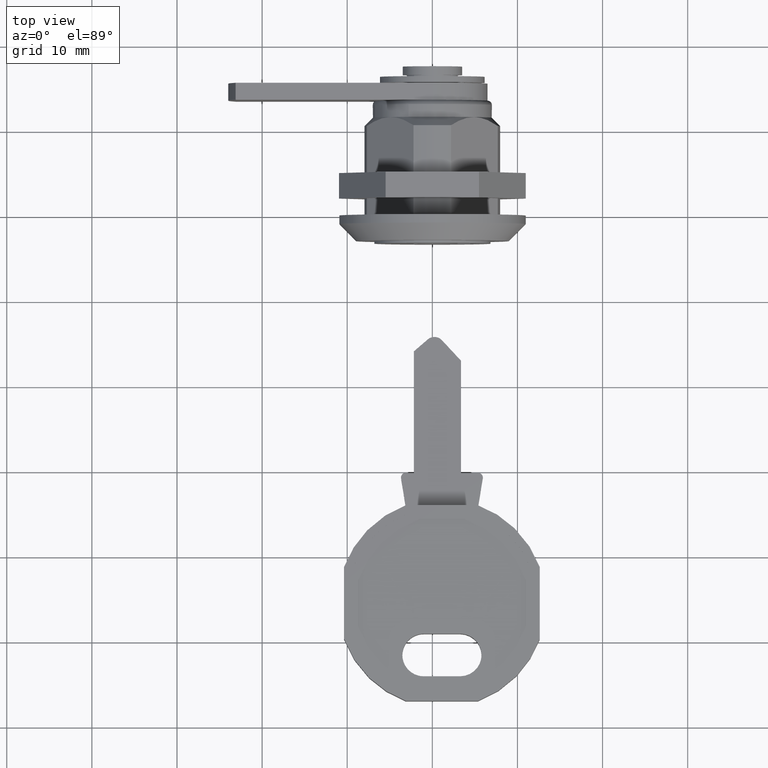
[diagram: clean part render]
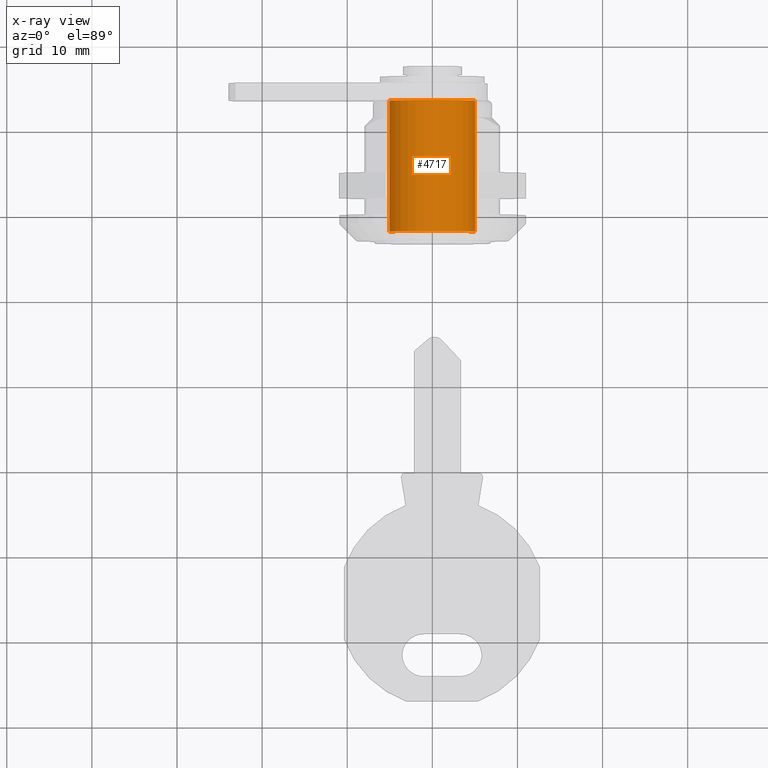
[diagram: x-ray — body ghosted, one internal face saturated and labeled with its STEP entity id]
A machine part, top view, then the same camera in x-ray: the body is ghosted and one INTERNAL B-rep face — a face not visible from any outside direction — is saturated and labeled: STEP entity #4717.
In plain terms, the highlighted face is a freeform B-spline surface patch.
Its self-contained STEP definition (entity closure, byte-faithful):
#4615=CARTESIAN_POINT('',(13.885000652312380,-5.014698108136515,-0.596072885016630));
#4616=CARTESIAN_POINT('',(13.885000652312387,-5.031757458015458,-0.452554379621787));
#4617=CARTESIAN_POINT('',(13.885000652312380,-5.040580732030427,-0.308295124651028));
#4618=CARTESIAN_POINT('',(13.885000652312383,-5.348875856681453,4.732285607379399));
#4619=CARTESIAN_POINT('',(13.885000652312380,-0.308295124651028,5.040580732030427));
#4620=CARTESIAN_POINT('',(13.885000652312383,4.732285607379399,5.348875856681453));
#4621=CARTESIAN_POINT('',(13.885000652312380,5.040580732030427,0.308295124651028));
#4622=CARTESIAN_POINT('',(-2.294625162362484,-5.014698108136515,-0.596072885016630));
#4623=CARTESIAN_POINT('',(-2.294625162362485,-5.031757458015458,-0.452554379621787));
#4624=CARTESIAN_POINT('',(-2.294625162362484,-5.040580732030427,-0.308295124651028));
#4625=CARTESIAN_POINT('',(-2.294625162362484,-5.348875856681453,4.732285607379399));
#4626=CARTESIAN_POINT('',(-2.294625162362484,-0.308295124651028,5.040580732030427));
#4627=CARTESIAN_POINT('',(-2.294625162362484,4.732285607379399,5.348875856681453));
#4628=CARTESIAN_POINT('',(-2.294625162362484,5.040580732030427,0.308295124651028));
#4636=(BOUNDED_SURFACE()B_SPLINE_SURFACE(2,1,((#4615,#4622),(#4616,#4623),(#4617,#4624),(#4618,#4625),(#4619,#4626),(#4620,#4627),(#4621,#4628)),.UNSPECIFIED.,.F.,.F.,.U.)B_SPLINE_SURFACE_WITH_KNOTS((3,2,2,3),(2,2),(0.0,0.334684558397461,8.701798518333980,17.068912478270502),(0.0,16.179625814674871),.UNSPECIFIED.)GEOMETRIC_REPRESENTATION_ITEM()RATIONAL_B_SPLINE_SURFACE(((0.977505800795127,0.977505800795127),(0.988284271247462,0.988284271247462),(1.0,1.0),(0.707106781186548,0.707106781186548),(1.0,1.0),(0.707106781186548,0.707106781186548),(1.0,1.0)))REPRESENTATION_ITEM('')SURFACE());
#4637=CARTESIAN_POINT('',(-1.900000142492440,-5.014699188251662,-0.596063797981708));
#4638=VERTEX_POINT('',#4637);
#4639=CARTESIAN_POINT('',(-1.900000142492365,0.0,5.050000000000000));
#4640=VERTEX_POINT('',#4639);
#4641=CARTESIAN_POINT('',(-1.900000142492440,-5.014699188251662,-0.596063797981708));
#4642=CARTESIAN_POINT('',(-1.900000142492365,-5.050000000000001,-0.299077212692434));
#4643=CARTESIAN_POINT('',(-1.900000142492365,-5.050000000000000,0.0));
#4644=CARTESIAN_POINT('',(-1.900000142492365,-5.050000000000001,5.050000000000001));
#4645=CARTESIAN_POINT('',(-1.900000142492365,0.0,5.050000000000000));
#4653=(BOUNDED_CURVE()B_SPLINE_CURVE(2,(#4641,#4642,#4643,#4644,#4645),.UNSPECIFIED.,.F.,.U.)B_SPLINE_CURVE_WITH_KNOTS((3,2,3),(0.229562779763110,0.250000000000000,0.500000000000000),.UNSPECIFIED.)CURVE()GEOMETRIC_REPRESENTATION_ITEM()RATIONAL_B_SPLINE_CURVE((0.956027354446331,0.976056307124872,1.0,0.707106781186547,1.0))REPRESENTATION_ITEM(''));
#4654=EDGE_CURVE('',#4638,#4640,#4653,.T.);
#4655=ORIENTED_EDGE('',*,*,#4654,.T.);
#4656=CARTESIAN_POINT('',(-1.900000142492366,5.040580732025013,0.308295124739554));
#4657=VERTEX_POINT('',#4656);
#4658=CARTESIAN_POINT('',(-1.900000142492365,0.0,5.050000000000000));
#4659=CARTESIAN_POINT('',(-1.900000142492366,4.750565637706583,5.050000000000001));
#4660=CARTESIAN_POINT('',(-1.900000142492366,5.040580732025013,0.308295124739554));
#4668=(BOUNDED_CURVE()B_SPLINE_CURVE(2,(#4658,#4659,#4660),.UNSPECIFIED.,.F.,.U.)B_SPLINE_CURVE_WITH_KNOTS((3,3),(0.500000000000000,0.739332962235908),.UNSPECIFIED.)CURVE()GEOMETRIC_REPRESENTATION_ITEM()RATIONAL_B_SPLINE_CURVE((1.0,0.719603993290266,0.976072041660212))REPRESENTATION_ITEM(''));
#4669=EDGE_CURVE('',#4640,#4657,#4668,.T.);
#4670=ORIENTED_EDGE('',*,*,#4669,.T.);
#4671=CARTESIAN_POINT('',(13.500000632926900,5.040580732025013,0.308295124739554));
#4672=VERTEX_POINT('',#4671);
#4673=CARTESIAN_POINT('',(13.500000632926900,5.040580732025013,0.308295124739554));
#4674=CARTESIAN_POINT('',(-1.900000142492366,5.040580732025013,0.308295124739554));
#4675=QUASI_UNIFORM_CURVE('',1,(#4673,#4674),.UNSPECIFIED.,.F.,.U.);
#4676=EDGE_CURVE('',#4672,#4657,#4675,.T.);
#4677=ORIENTED_EDGE('',*,*,#4676,.F.);
#4678=CARTESIAN_POINT('',(13.500000632926900,0.0,5.050000000000000));
#4679=VERTEX_POINT('',#4678);
#4680=CARTESIAN_POINT('',(13.500000632926900,0.0,5.050000000000000));
#4681=CARTESIAN_POINT('',(13.500000632926900,4.750565637706583,5.050000000000001));
#4682=CARTESIAN_POINT('',(13.500000632926902,5.040580732025013,0.308295124739554));
#4690=(BOUNDED_CURVE()B_SPLINE_CURVE(2,(#4680,#4681,#4682),.UNSPECIFIED.,.F.,.U.)B_SPLINE_CURVE_WITH_KNOTS((3,3),(0.500000000000000,0.739332962235908),.UNSPECIFIED.)CURVE()GEOMETRIC_REPRESENTATION_ITEM()RATIONAL_B_SPLINE_CURVE((1.0,0.719603993290266,0.976072041660212))REPRESENTATION_ITEM(''));
#4691=EDGE_CURVE('',#4679,#4672,#4690,.T.);
#4692=ORIENTED_EDGE('',*,*,#4691,.F.);
#4693=CARTESIAN_POINT('',(13.500000632926900,-5.014699174901933,-0.596063910295006));
#4694=VERTEX_POINT('',#4693);
#4695=CARTESIAN_POINT('',(13.500000632926900,-5.014699174901934,-0.596063910295006));
#4696=CARTESIAN_POINT('',(13.500000632926906,-5.050000000000001,-0.299077269442733));
#4697=CARTESIAN_POINT('',(13.500000632926900,-5.050000000000000,0.0));
#4698=CARTESIAN_POINT('',(13.500000632926898,-5.050000000000001,5.050000000000001));
#4699=CARTESIAN_POINT('',(13.500000632926900,0.0,5.050000000000000));
#4707=(BOUNDED_CURVE()B_SPLINE_CURVE(2,(#4695,#4696,#4697,#4698,#4699),.UNSPECIFIED.,.F.,.U.)B_SPLINE_CURVE_WITH_KNOTS((3,2,3),(0.229562775977974,0.250000000000000,0.500000000000000),.UNSPECIFIED.)CURVE()GEOMETRIC_REPRESENTATION_ITEM()RATIONAL_B_SPLINE_CURVE((0.956027347027287,0.976056302690309,1.0,0.707106781186547,1.0))REPRESENTATION_ITEM(''));
#4708=EDGE_CURVE('',#4694,#4679,#4707,.T.);
#4709=ORIENTED_EDGE('',*,*,#4708,.F.);
#4710=CARTESIAN_POINT('',(13.500000632926900,-5.014699174901933,-0.596063910295006));
#4711=CARTESIAN_POINT('',(-1.900000142492440,-5.014699188251662,-0.596063797981708));
#4712=QUASI_UNIFORM_CURVE('',1,(#4710,#4711),.UNSPECIFIED.,.F.,.U.);
#4713=EDGE_CURVE('',#4694,#4638,#4712,.T.);
#4714=ORIENTED_EDGE('',*,*,#4713,.T.);
#4715=EDGE_LOOP('',(#4655,#4670,#4677,#4692,#4709,#4714));
#4716=FACE_OUTER_BOUND('',#4715,.T.);
#4717=ADVANCED_FACE('',(#4716),#4636,.F.);